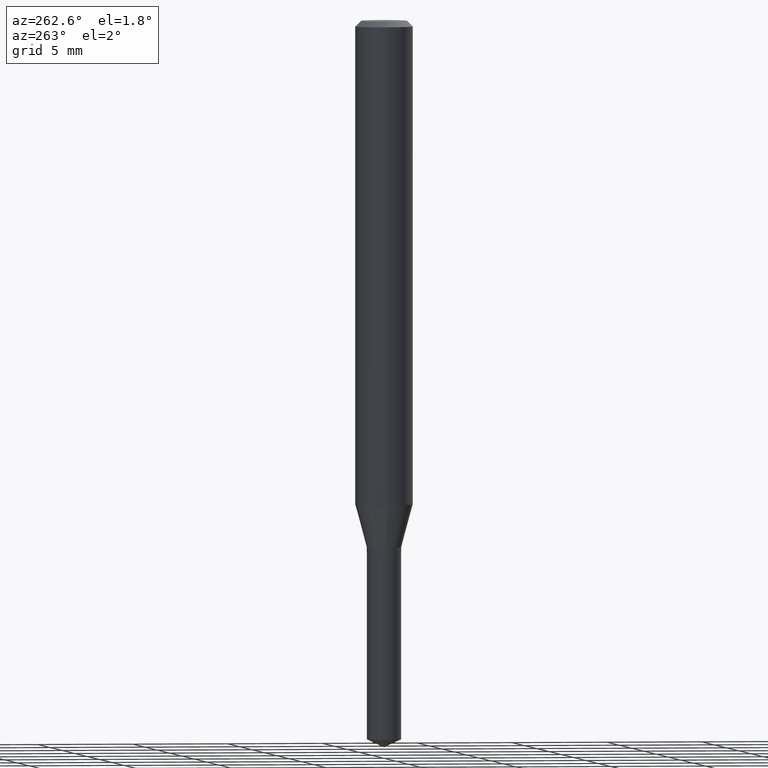
[diagram: clean part render]
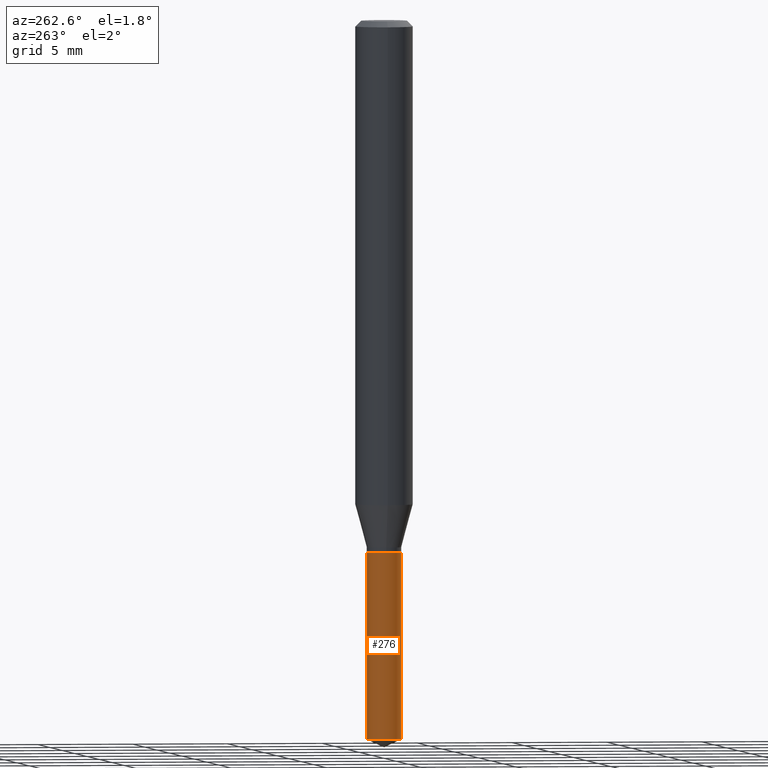
[diagram: same view with one face highlighted and labeled with its STEP entity id]
A machine part, auxiliary view. The second image highlights one B-rep face of the part: STEP entity #276.
In plain terms, the highlighted cylindrical surface (edge-blend (fillet) strip) has radius 0.9004 mm, axis along (-0, 0, 1).
Its self-contained STEP definition (entity closure, byte-faithful):
#15 = ORIENTED_EDGE ( 'NONE', *, *, #84, .T. ) ;
#21 = LINE ( 'NONE', #195, #237 ) ;
#35 = AXIS2_PLACEMENT_3D ( 'NONE', #398, #132, #425 ) ;
#39 = CARTESIAN_POINT ( 'NONE',  ( 2.676565608369631794E-29, -3.821426325363822773E-15, -1.094499999999999806 ) ) ;
#69 = ORIENTED_EDGE ( 'NONE', *, *, #311, .F. ) ;
#80 = VERTEX_POINT ( 'NONE', #95 ) ;
#84 = EDGE_CURVE ( 'NONE', #149, #80, #399, .T. ) ;
#95 = CARTESIAN_POINT ( 'NONE',  ( -2.475460269239419410E-16, -0.03545000000000516488, -1.479569393518405773 ) ) ;
#120 = LINE ( 'NONE', #419, #154 ) ;
#132 = DIRECTION ( 'NONE',  ( -2.445402730703145379E-29, 3.491575962694140016E-15, 1.000000000000000000 ) ) ;
#146 = VERTEX_POINT ( 'NONE', #267 ) ;
#149 = VERTEX_POINT ( 'NONE', #380 ) ;
#154 = VECTOR ( 'NONE', #387, 39.37007874015748143 ) ;
#160 = DIRECTION ( 'NONE',  ( -6.982962677686265922E-15, -1.000000000000000000, 3.853100132107564390E-15 ) ) ;
#163 = DIRECTION ( 'NONE',  ( -2.445402730703145379E-29, 3.491575962694140016E-15, 1.000000000000000000 ) ) ;
#190 = DIRECTION ( 'NONE',  ( -2.445402730703145379E-29, 3.491575962694140016E-15, 1.000000000000000000 ) ) ;
#195 = CARTESIAN_POINT ( 'NONE',  ( 2.518873998269822552E-16, 0.03544999999999617901, -1.094500000000000028 ) ) ;
#206 = CARTESIAN_POINT ( 'NONE',  ( 2.676565608369631794E-29, -3.821426325363822773E-15, -1.094499999999999806 ) ) ;
#207 = AXIS2_PLACEMENT_3D ( 'NONE', #39, #383, #356 ) ;
#215 = EDGE_CURVE ( 'NONE', #149, #146, #21, .T. ) ;
#237 = VECTOR ( 'NONE', #190, 39.37007874015748143 ) ;
#267 = CARTESIAN_POINT ( 'NONE',  ( 2.518873998269917215E-16, 0.03544999999999617901, -1.094500000000000028 ) ) ;
#271 = FACE_OUTER_BOUND ( 'NONE', #481, .T. ) ;
#275 = CARTESIAN_POINT ( 'NONE',  ( -2.475460269239513581E-16, -0.03545000000000382567, -1.094499999999999806 ) ) ;
#276 = ADVANCED_FACE ( 'NONE', ( #271 ), #416, .T. ) ;
#305 = EDGE_CURVE ( 'NONE', #80, #430, #120, .T. ) ;
#311 = EDGE_CURVE ( 'NONE', #146, #430, #472, .T. ) ;
#356 = DIRECTION ( 'NONE',  ( -6.982962677686265922E-15, -1.000000000000000000, 3.853100132107564390E-15 ) ) ;
#357 = ORIENTED_EDGE ( 'NONE', *, *, #305, .T. ) ;
#366 = ORIENTED_EDGE ( 'NONE', *, *, #215, .F. ) ;
#380 = CARTESIAN_POINT ( 'NONE',  ( 2.518873998269916722E-16, 0.03544999999999483981, -1.479569393518405773 ) ) ;
#383 = DIRECTION ( 'NONE',  ( -2.445402730703145379E-29, 3.491575962694140016E-15, 1.000000000000000000 ) ) ;
#387 = DIRECTION ( 'NONE',  ( -2.445402730703145379E-29, 3.491575962694140016E-15, 1.000000000000000000 ) ) ;
#398 = CARTESIAN_POINT ( 'NONE',  ( 3.618215354789745296E-29, -5.165925363741898553E-15, -1.479569393518405773 ) ) ;
#399 = CIRCLE ( 'NONE', #35, 0.03544999999999999540 ) ;
#416 = CYLINDRICAL_SURFACE ( 'NONE', #207, 0.03545000000000000234 ) ;
#419 = CARTESIAN_POINT ( 'NONE',  ( -2.475460269239513581E-16, -0.03545000000000382567, -1.094499999999999806 ) ) ;
#425 = DIRECTION ( 'NONE',  ( -6.982962677686265133E-15, -1.000000000000000000, 0.000000000000000000 ) ) ;
#430 = VERTEX_POINT ( 'NONE', #275 ) ;
#439 = AXIS2_PLACEMENT_3D ( 'NONE', #206, #163, #160 ) ;
#472 = CIRCLE ( 'NONE', #439, 0.03545000000000000234 ) ;
#481 = EDGE_LOOP ( 'NONE', ( #366, #15, #357, #69 ) ) ;